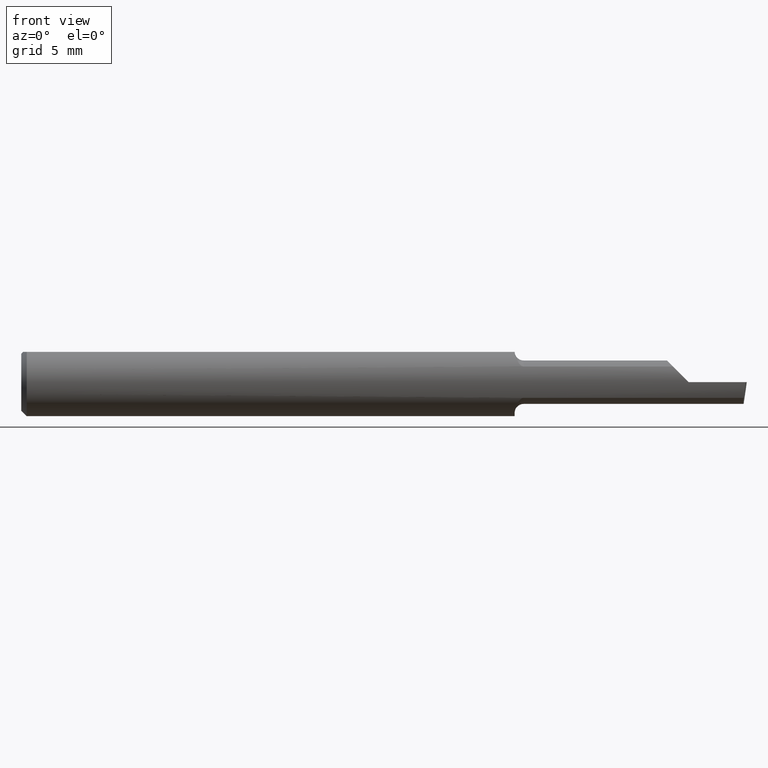
[diagram: clean part render]
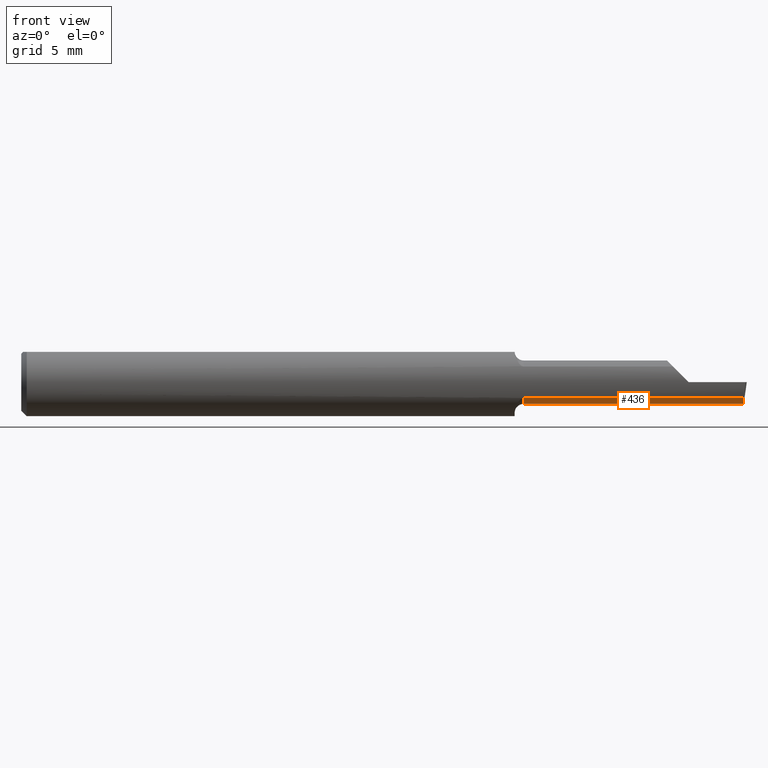
[diagram: same view with one face highlighted and labeled with its STEP entity id]
A machine part, front view. The second image highlights one B-rep face of the part: STEP entity #436.
In plain terms, the highlighted cylindrical surface (edge-blend (fillet) strip) has radius 1.5215 mm, axis along (-1, -0, -0).
Its self-contained STEP definition (entity closure, byte-faithful):
#5 = EDGE_CURVE ( 'NONE', #589, #575, #488, .T. ) ;
#12 = CARTESIAN_POINT ( 'NONE',  ( 2.000000000000000000, -0.04150000000000000216, -0.05990000000000000185 ) ) ;
#90 = ORIENTED_EDGE ( 'NONE', *, *, #468, .F. ) ;
#110 = DIRECTION ( 'NONE',  ( -1.000000000000000000, 5.691349986800549142E-18, -0.0000000000000000000 ) ) ;
#115 = EDGE_LOOP ( 'NONE', ( #266, #90, #579, #409, #433 ) ) ;
#129 = CARTESIAN_POINT ( 'NONE',  ( 1.619999999999999885, -0.08307469879518077083, -0.04312255117789289688 ) ) ;
#134 = VERTEX_POINT ( 'NONE', #571 ) ;
#157 = AXIS2_PLACEMENT_3D ( 'NONE', #412, #467, #173 ) ;
#167 = CARTESIAN_POINT ( 'NONE',  ( 1.991365359011875169, -0.08307469879518077083, -0.04312255117789289688 ) ) ;
#171 = VECTOR ( 'NONE', #110, 39.37007874015748143 ) ;
#173 = DIRECTION ( 'NONE',  ( 0.0000000000000000000, 0.0000000000000000000, 1.000000000000000000 ) ) ;
#192 = CYLINDRICAL_SURFACE ( 'NONE', #157, 0.05989999999999998104 ) ;
#212 = CARTESIAN_POINT ( 'NONE',  ( 0.0000000000000000000, -0.04149999999999999523, -0.05989999999999998104 ) ) ;
#215 = DIRECTION ( 'NONE',  ( -1.000000000000000000, -0.0000000000000000000, -0.0000000000000000000 ) ) ;
#220 = CIRCLE ( 'NONE', #383, 0.05989999999999995328 ) ;
#221 = CARTESIAN_POINT ( 'NONE',  ( 1.990322576363892759, -0.07176861043311237587, -0.05402281578110740279 ) ) ;
#240 = CARTESIAN_POINT ( 'NONE',  ( 1.989982066092358393, -0.05720488466914005338, -0.05989999999999997410 ) ) ;
#264 = DIRECTION ( 'NONE',  ( 0.0000000000000000000, 0.0000000000000000000, 1.000000000000000000 ) ) ;
#266 = ORIENTED_EDGE ( 'NONE', *, *, #5, .F. ) ;
#315 = CARTESIAN_POINT ( 'NONE',  ( 1.384999999999999787, -0.04150000000000000216, 0.0000000000000000000 ) ) ;
#333 = CARTESIAN_POINT ( 'NONE',  ( 1.854999999999999982, -0.04150000000000000216, -0.05990000000000000185 ) ) ;
#334 = FACE_OUTER_BOUND ( 'NONE', #115, .T. ) ;
#359 = DIRECTION ( 'NONE',  ( -1.000000000000000000, -0.0000000000000000000, -0.0000000000000000000 ) ) ;
#364 =( BOUNDED_CURVE ( )  B_SPLINE_CURVE ( 3, ( #167, #221, #240, #435 ),
 .UNSPECIFIED., .F., .T. ) 
 B_SPLINE_CURVE_WITH_KNOTS ( ( 4, 4 ),
 ( 5.726109673675772171, 6.493234751459700860 ),
 .UNSPECIFIED. ) 
 CURVE ( )  GEOMETRIC_REPRESENTATION_ITEM ( )  RATIONAL_B_SPLINE_CURVE ( ( 1.000000000000000000, 0.9515582177473689285, 0.9515582177473689285, 1.000000000000000000 ) ) 
 REPRESENTATION_ITEM ( '' )  );
#366 = CARTESIAN_POINT ( 'NONE',  ( 1.990393312970557327, -0.04150000000000000216, -0.05990000000000000185 ) ) ;
#383 = AXIS2_PLACEMENT_3D ( 'NONE', #315, #215, #264 ) ;
#402 = VERTEX_POINT ( 'NONE', #456 ) ;
#408 = VECTOR ( 'NONE', #359, 39.37007874015748143 ) ;
#409 = ORIENTED_EDGE ( 'NONE', *, *, #573, .T. ) ;
#412 = CARTESIAN_POINT ( 'NONE',  ( 0.0000000000000000000, -0.04150000000000000216, 0.0000000000000000000 ) ) ;
#423 = LINE ( 'NONE', #129, #477 ) ;
#433 = ORIENTED_EDGE ( 'NONE', *, *, #463, .F. ) ;
#435 = CARTESIAN_POINT ( 'NONE',  ( 1.990393312970557327, -0.04150000000000000216, -0.05990000000000000185 ) ) ;
#436 = ADVANCED_FACE ( 'NONE', ( #334 ), #192, .T. ) ;
#445 = VERTEX_POINT ( 'NONE', #366 ) ;
#456 = CARTESIAN_POINT ( 'NONE',  ( 1.991365359011875169, -0.08307469879518077083, -0.04312255117789289688 ) ) ;
#463 = EDGE_CURVE ( 'NONE', #575, #134, #220, .T. ) ;
#467 = DIRECTION ( 'NONE',  ( -1.000000000000000000, -0.0000000000000000000, -0.0000000000000000000 ) ) ;
#468 = EDGE_CURVE ( 'NONE', #445, #589, #561, .T. ) ;
#477 = VECTOR ( 'NONE', #599, 39.37007874015748143 ) ;
#488 = LINE ( 'NONE', #212, #408 ) ;
#507 = EDGE_CURVE ( 'NONE', #402, #445, #364, .T. ) ;
#540 = CARTESIAN_POINT ( 'NONE',  ( 1.384999999999999787, -0.04150000000000000216, -0.05989999999999996022 ) ) ;
#561 = LINE ( 'NONE', #12, #171 ) ;
#571 = CARTESIAN_POINT ( 'NONE',  ( 1.384999999999999787, -0.08307469879518095124, -0.04312255117789267483 ) ) ;
#573 = EDGE_CURVE ( 'NONE', #402, #134, #423, .T. ) ;
#575 = VERTEX_POINT ( 'NONE', #540 ) ;
#579 = ORIENTED_EDGE ( 'NONE', *, *, #507, .F. ) ;
#589 = VERTEX_POINT ( 'NONE', #333 ) ;
#599 = DIRECTION ( 'NONE',  ( -1.000000000000000000, -0.0000000000000000000, -0.0000000000000000000 ) ) ;